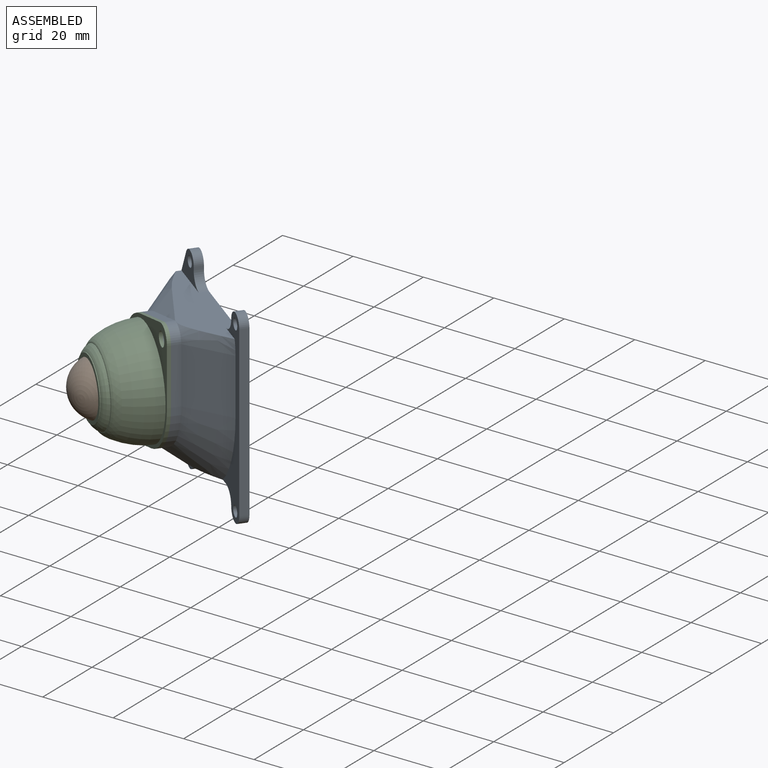
[diagram: assembled view]
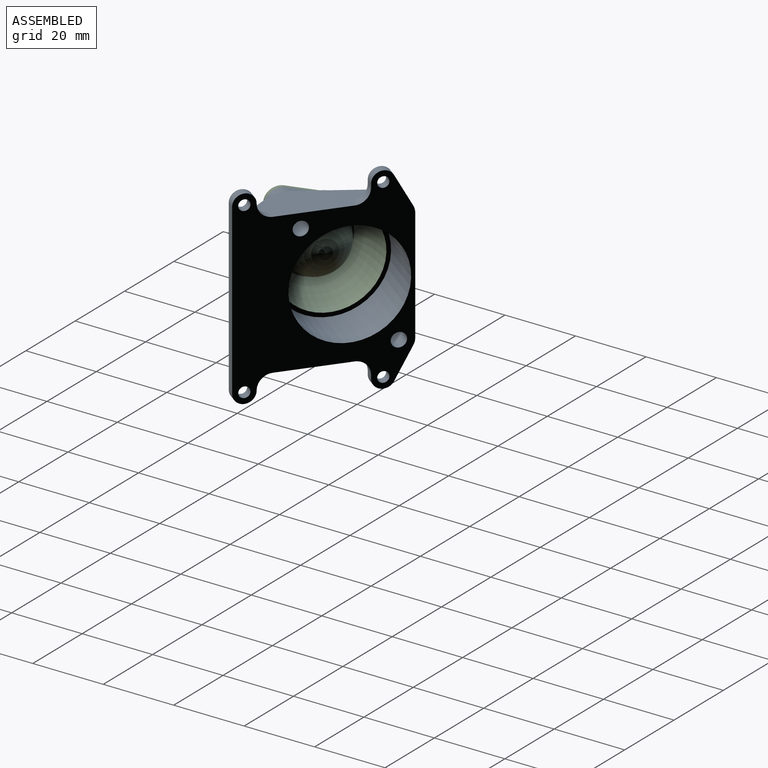
[diagram: assembled view, second angle]
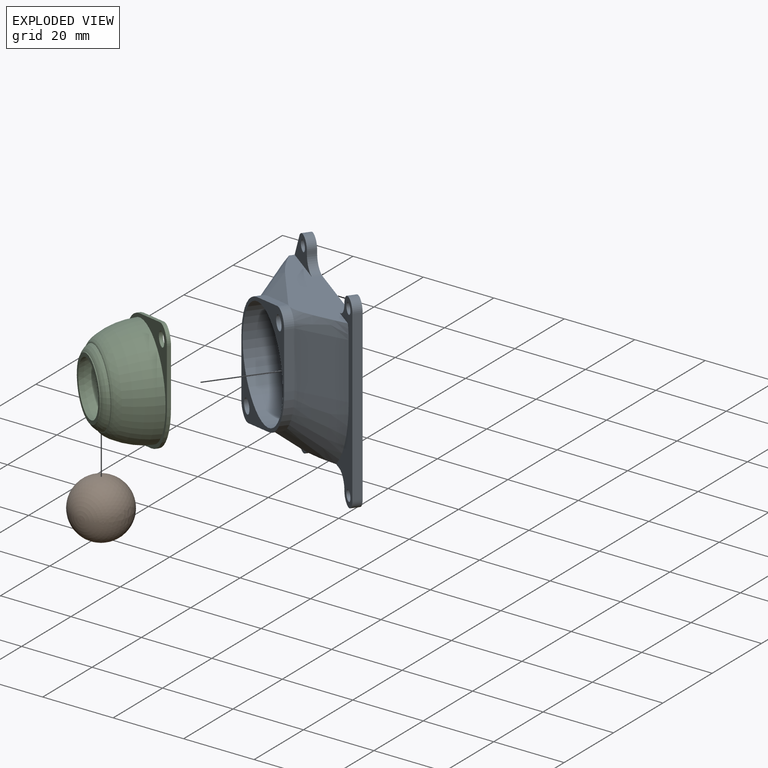
[diagram: exploded view]
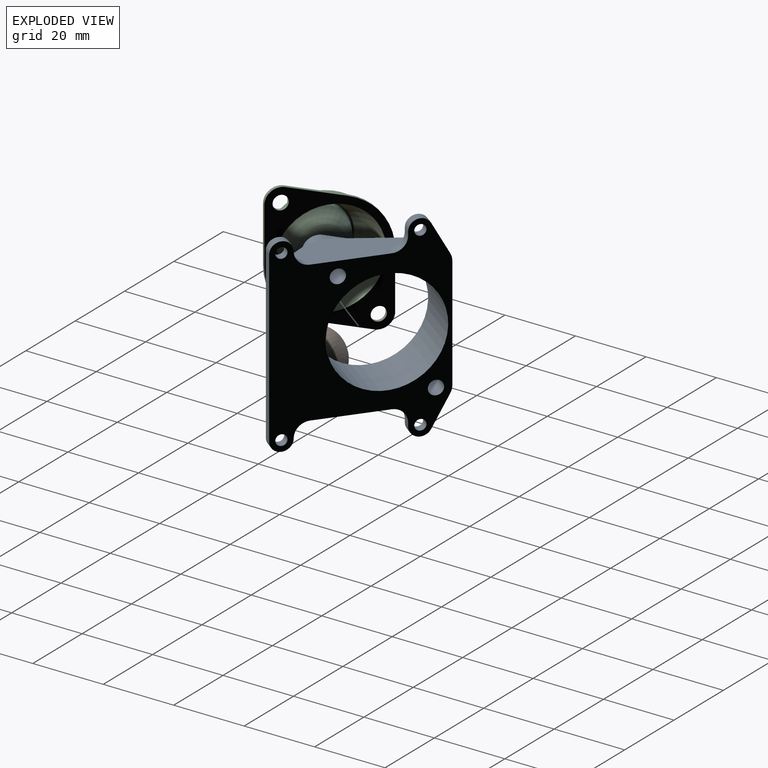
[diagram: exploded view, second angle]
ASSEMBLY  parts=3 mates=2
PART A: 44 faces, bbox 65.7x62.8x15.1 mm
  f0: plane 24.77x18.61mm, normal (-0.8,0.6,0), area 217.9mm2, adj f1,f6,f7,f14,f17,f18,f32,f38
  f1: cylinder r=4mm len=5.6mm, axis (0,0,1), area 15.7mm2, adj f0,f2,f18,f43
  f2: plane 2.5x0.8mm, normal (0.6,0.8,0), area 2.5mm2, adj f1,f3,f18,f43
  f3: cylinder r=3mm len=4.8mm, axis (0,0,1), area 19.8mm2, adj f2,f4,f18,f43
  f4: plane 8.86x4mm, normal (-0.91,-0.41,0), area 24.3mm2, adj f3,f18,f32,f43
  f5: cylinder r=1.5mm len=3mm, axis (0,0,1), area 23.6mm2, adj f18,f43
  f6: cone r=14mm half-angle=45deg, axis (0,0,1), area 0.1mm2, adj f0,f7,f32
  f7: plane 13.47x12.9mm, normal (-0.42,0.57,-0.71), area 56.6mm2, adj f0,f6,f33,f38
  f8: cone r=4mm half-angle=45deg, axis (0,0,1), area 0.1mm2, adj f9,f30,f41
  f9: plane 31.95x23.99mm, normal (0.8,-0.6,0), area 294.9mm2, adj f8,f10,f17,f18,f21,f24,f28,f40
  f10: cylinder r=4mm len=5.6mm, axis (0,0,1), area 15.7mm2, adj f9,f11,f17,f18
  f11: cylinder r=3mm len=5.4mm, axis (0,0,1), area 23.6mm2, adj f10,f12,f17,f18
  f12: plane 38.4x28.8mm, normal (0.6,0.8,0), area 120mm2, adj f11,f13,f17,f18
  f13: cylinder r=3mm len=5.4mm, axis (0,0,1), area 23.6mm2, adj f12,f14,f17,f18
  f14: cylinder r=4mm len=5.6mm, axis (0,0,1), area 15.7mm2, adj f0,f13,f17,f18
  f15: cylinder r=1.5mm len=3mm, axis (0,0,1), area 23.6mm2, adj f17,f18
  f16: cylinder r=1.5mm len=3mm, axis (0,0,1), area 23.6mm2, adj f17,f18
  f17: plane 44.4x35mm, normal (0,0,-1), area 239.5mm2, adj f0,f9,f10,f11,f12,f13,f14,f15
  f18: plane 65.6x62.6mm, normal (0,0,1), area 1223.9mm2, adj f0,f1,f2,f3,f4,f5,f9,f10
  f19: plane 12.8x9.6mm, normal (0.6,0.8,0), area 40mm2, adj f20,f30,f37,f39
  f20: cylinder r=16mm len=19.2mm, axis (0,0,1), area 51.5mm2, adj f19,f33,f37,f38
  f21: plane 9.71x4.88mm, normal (-0.14,-0.99,0), area 28.7mm2, adj f9,f18,f22,f26,f28,f42
  f22: cylinder r=3mm len=5.4mm, axis (0,0,1), area 19.8mm2, adj f18,f21,f23,f28
  f23: plane 2.5x0.8mm, normal (0.6,0.8,0), area 2.5mm2, adj f18,f22,f24,f28
  f24: cylinder r=4mm len=5.6mm, axis (0,0,1), area 15.7mm2, adj f9,f18,f23,f28
  f25: plane 25.6x19.2mm, normal (-0.6,-0.8,0), area 402.2mm2, adj f18,f26,f29,f32,f37,f42
  f26: cylinder r=4mm len=5.87mm, axis (0,0,1), area 10.7mm2, adj f18,f21,f25,f42
  f27: cylinder r=1.5mm len=3mm, axis (0,0,1), area 23.6mm2, adj f18,f28
  f28: plane 11.6x10.71mm, normal (0,0,-1), area 49.7mm2, adj f9,f21,f22,f23,f24,f27
  f29: cylinder r=16mm len=19.2mm, axis (0,0,1), area 51.5mm2, adj f25,f31,f37,f42
  f30: cylinder r=4mm len=6.4mm, axis (0,0,1), area 18.5mm2, adj f8,f19,f31,f37,f40
  f31: plane 12.8x9.6mm, normal (0.6,-0.8,0), area 40mm2, adj f29,f30,f37,f41
  f32: cylinder r=4mm len=15mm, axis (0,0,1), area 86.4mm2, adj f0,f4,f6,f18,f25,f33,f37,f43
  f33: plane 12.8x9.6mm, normal (-0.6,0.8,0), area 40mm2, adj f7,f20,f32,f37
  f34: cylinder r=15mm len=30mm, axis (0,0,1), area 1413.7mm2, adj f18,f37
  f35: cylinder r=2mm len=15mm, axis (0,0,1), area 188.5mm2, adj f18,f37
  f36: cylinder r=2mm len=15mm, axis (0,0,1), area 188.5mm2, adj f18,f37
  f37: plane 48x32mm, normal (0,0,-1), area 267.2mm2, adj f19,f20,f25,f29,f30,f31,f32,f33
  f38: cone r=16mm half-angle=45deg, axis (0,0,1), area 339mm2, adj f0,f7,f17,f20,f39
  f39: plane 18.8x17.6mm, normal (0.42,0.57,-0.71), area 226.3mm2, adj f17,f19,f38,f40
  f40: cone r=4mm half-angle=45deg, axis (0,0,1), area 60.3mm2, adj f9,f17,f30,f39
  f41: plane 13.47x12.9mm, normal (0.42,-0.57,-0.71), area 56.6mm2, adj f8,f9,f31,f42
  f42: cone r=16mm half-angle=45deg, axis (0,0,1), area 133.4mm2, adj f9,f21,f25,f26,f29,f41
  f43: plane 13.1x11.2mm, normal (0,0,-1), area 50.6mm2, adj f0,f1,f2,f3,f4,f5,f32
PART B: 1 faces, bbox 16.3x16.3x16.3 mm
  f0: sphere r=8.12mm, area 829.6mm2
PART C: 20 faces, bbox 48x32x15 mm
  f0: sphere r=9.12mm, area 10.4mm2, adj f1,f2
  f1: torus R=7.58mm, axis (0,0,-1), area 163.6mm2, adj f0
  f2: plane 17.15x17.15mm, normal (0,0,1), area 54.2mm2, adj f0,f3
  f3: sphere r=8.12mm, area 574.3mm2, adj f2
  f4: plane 12.8x9.6mm, normal (-0.6,-0.8,0), area 16mm2, adj f5,f11,f15,f16
  f5: cylinder r=4mm len=6.4mm, axis (0,0,-1), area 7.4mm2, adj f4,f6,f11,f16
  f6: plane 12.8x9.6mm, normal (-0.6,0.8,0), area 16mm2, adj f5,f7,f11,f16
  f7: cylinder r=16mm len=19.2mm, axis (0,0,-1), area 20.6mm2, adj f6,f8,f11,f16
  f8: plane 12.8x9.6mm, normal (0.6,0.8,0), area 16mm2, adj f7,f9,f11,f16
  f9: cylinder r=4mm len=6.4mm, axis (0,0,-1), area 7.4mm2, adj f8,f10,f11,f16
  f10: plane 12.8x9.6mm, normal (0.6,-0.8,0), area 16mm2, adj f9,f11,f15,f16
  f11: plane 48x32mm, normal (0,0,1), area 267.2mm2, adj f4,f5,f6,f7,f8,f9,f10,f12
  f12: cylinder r=2mm len=4mm, axis (0,0,-1), area 12.6mm2, adj f11,f16
  f13: revolved ~30x30mm, area 2268.7mm2, adj f11
  f14: cylinder r=2mm len=4mm, axis (0,0,-1), area 12.6mm2, adj f11,f16
  f15: cylinder r=16mm len=19.2mm, axis (0,0,-1), area 20.6mm2, adj f4,f10,f11,f16
  f16: plane 48x32mm, normal (0,0,-1), area 370.6mm2, adj f4,f5,f6,f7,f8,f9,f10,f12
  f17: revolved ~27.72x27.72mm, area 1010.8mm2, adj f16,f18
  f18: torus R=9.62mm, axis (0,0,-1), area 74.3mm2, adj f17,f19
  f19: sphere r=9.12mm, area 511.5mm2, adj f18
PLACE A rot(axis=(-0.81,-0.12,-0.58),120deg) t=(102.24,133.55,-38.08)mm
PLACE B rot(axis=(0,0,-1),90deg) t=(86.11,112.05,-38.08)mm
PLACE C rot(axis=(0.5,0.5,-0.7),168.5deg) t=(93.24,121.55,-38.08)mm
MATE ball B.f0 <-> C.f1  axis (0,0,1) through (86.11,112.05,-38.08)mm
MATE fastened C.f5 <-> A.f8  axis (0.6,0.8,0) through (102.84,114.35,-22.08)mm
